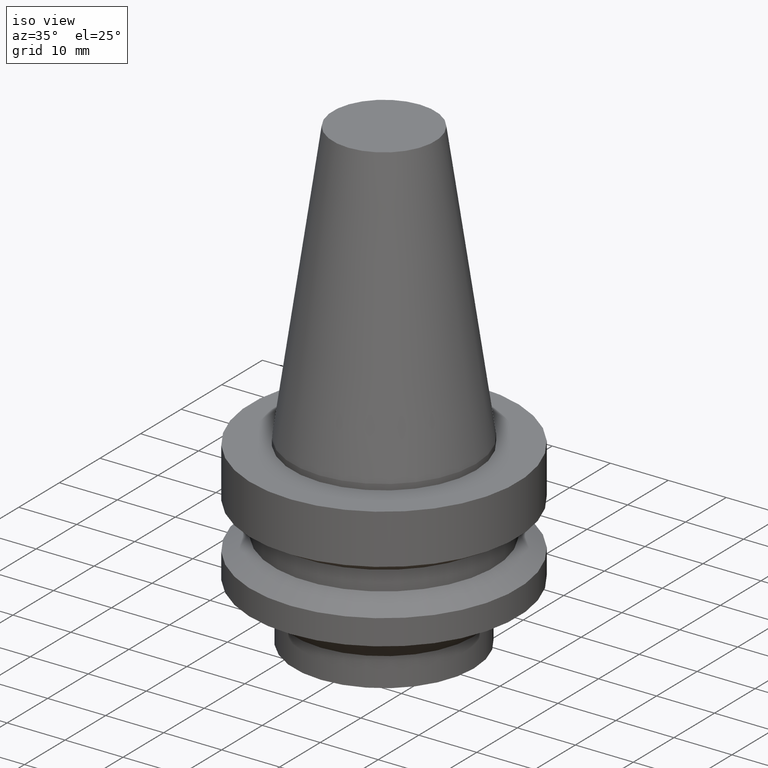
[diagram: clean part render]
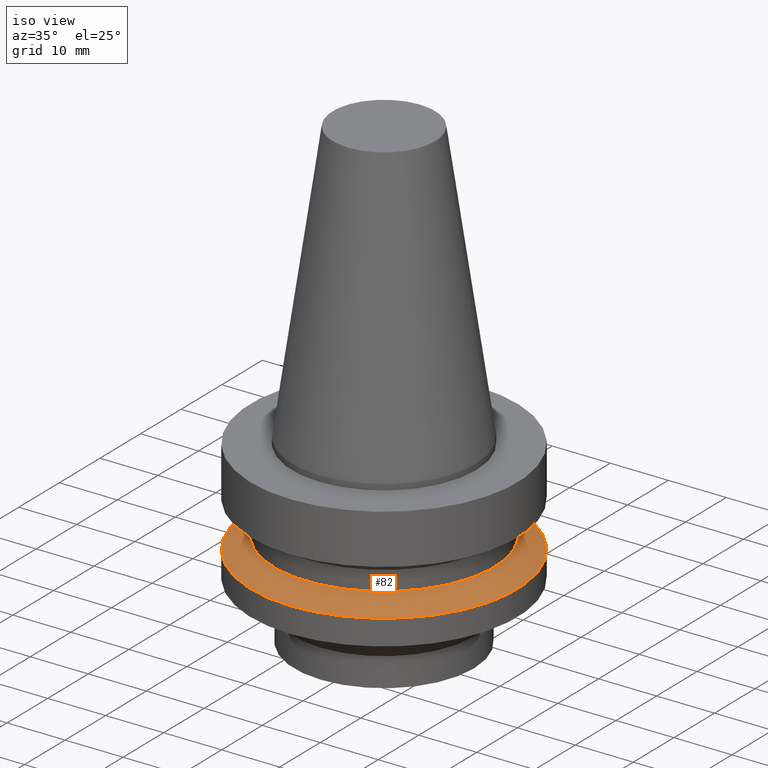
[diagram: same view with one face highlighted and labeled with its STEP entity id]
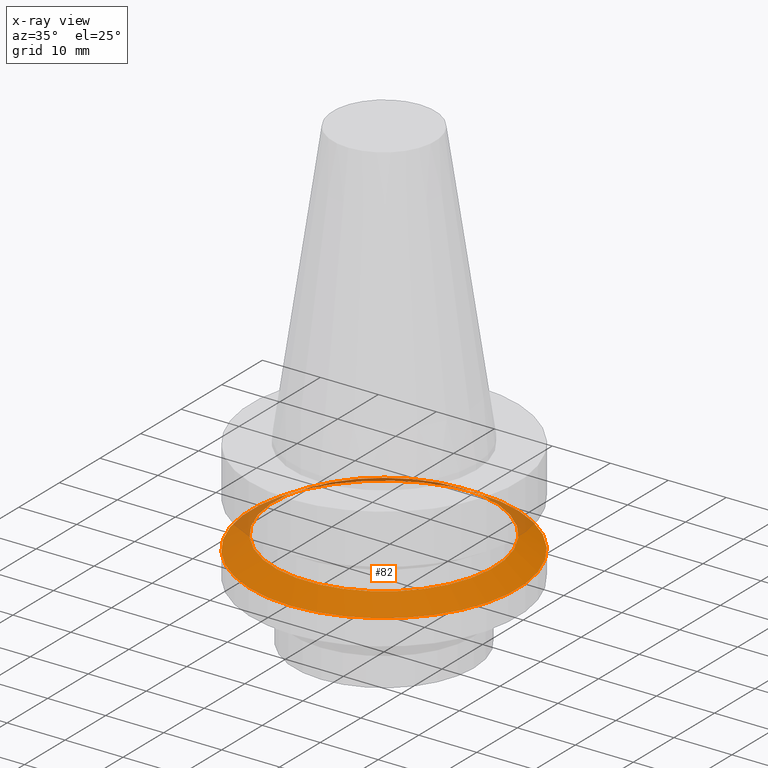
[diagram: x-ray of the same camera — body ghosted, the highlighted face saturated]
A machine part, iso view. The second image highlights one B-rep face of the part: STEP entity #82.
The next image is the same camera in x-ray: the body ghosted, the highlighted face saturated — about 11% of this face is hidden behind the body in this view.
In plain terms, the highlighted conical surface has half-angle 60 deg.
Its self-contained STEP definition (entity closure, byte-faithful):
#82=ADVANCED_FACE('',(#109,#110),#111,.T.);
#109=FACE_BOUND('',#146,.T.);
#110=FACE_BOUND('',#147,.T.);
#111=CONICAL_SURFACE('',#148,21.0,1.04719755058882);
#146=EDGE_LOOP('',(#197));
#147=EDGE_LOOP('',(#198));
#148=AXIS2_PLACEMENT_3D('',#199,#200,#201);
#197=ORIENTED_EDGE('',*,*,#233,.F.);
#198=ORIENTED_EDGE('',*,*,#232,.T.);
#199=CARTESIAN_POINT('',(1.00698416723543E-015,2.01396833447087E-015,-16.44529946));
#200=DIRECTION('',(6.12323399573677E-017,1.2246467991477E-016,-1.0));
#201=DIRECTION('',(-1.23259516440783E-032,1.0,1.2246467991477E-016));
#232=EDGE_CURVE('',#250,#250,#251,.T.);
#233=EDGE_CURVE('',#252,#252,#253,.T.);
#250=VERTEX_POINT('',#274);
#251=CIRCLE('',#275,19.0);
#252=VERTEX_POINT('',#276);
#253=CIRCLE('',#277,23.0);
#274=CARTESIAN_POINT('',(9.36279151221199E-016,19.0,-15.29059892));
#275=AXIS2_PLACEMENT_3D('',#304,#305,#306);
#276=CARTESIAN_POINT('',(1.07768918324967E-015,23.0,-17.6));
#277=AXIS2_PLACEMENT_3D('',#307,#308,#309);
#304=CARTESIAN_POINT('',(9.36279151221199E-016,1.8725583024424E-015,-15.29059892));
#305=DIRECTION('',(6.12323399573677E-017,1.2246467991475E-016,-1.0));
#306=DIRECTION('',(-1.23259516440783E-032,1.0,1.2246467991475E-016));
#307=CARTESIAN_POINT('',(1.07768918324967E-015,2.15537836649934E-015,-17.6));
#308=DIRECTION('',(6.12323399573677E-017,1.22464679914716E-016,-1.0));
#309=DIRECTION('',(-1.23259516440783E-032,1.0,1.22464679914716E-016));